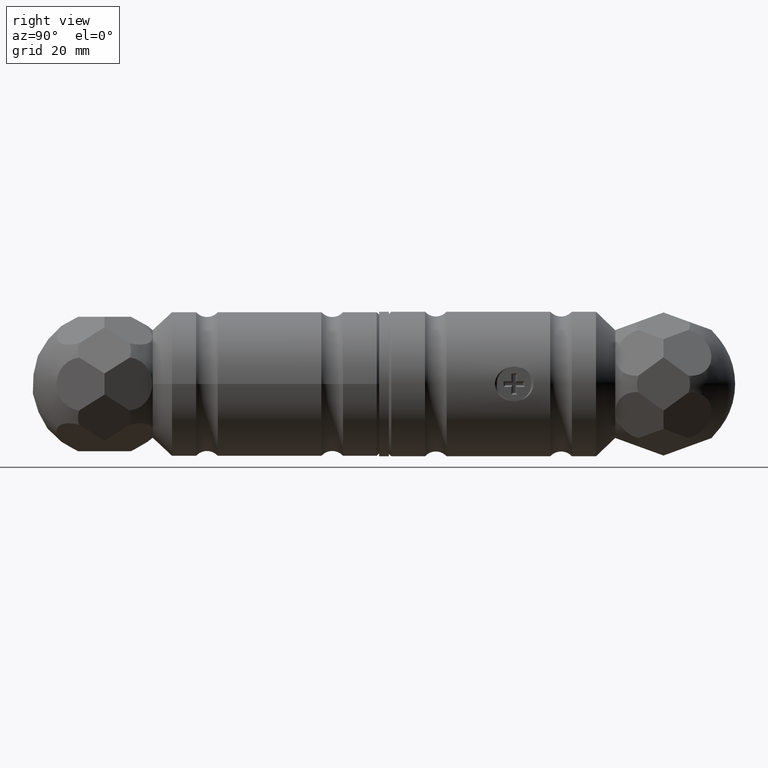
[diagram: clean part render]
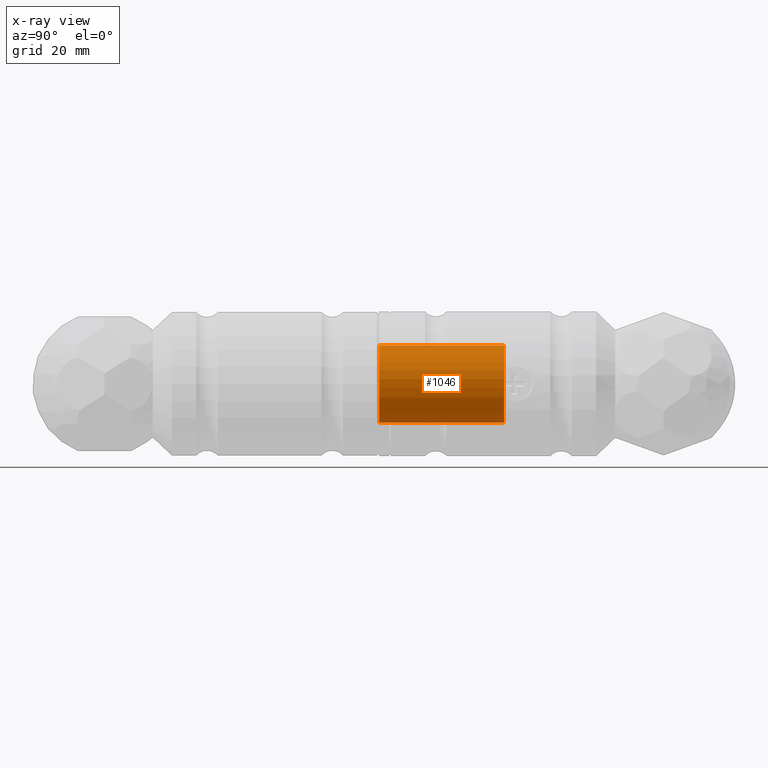
[diagram: x-ray — body ghosted, one internal face saturated and labeled with its STEP entity id]
A machine part, right view, then the same camera in x-ray: the body is ghosted and one INTERNAL B-rep face — a face not visible from any outside direction — is saturated and labeled: STEP entity #1046.
In plain terms, the highlighted cylindrical surface (bore or boss wall) has radius 8 mm, axis along (-0, -1, 0).
Its self-contained STEP definition (entity closure, byte-faithful):
#327 = CARTESIAN_POINT ( 'NONE',  ( -1.197398590121303649E-45, -25.89999999999999858, -2.888894916580853780E-31 ) ) ;
#1021 = CARTESIAN_POINT ( 'NONE',  ( -3.421138828918010427E-46, -42.00000000000000000, 9.629649721936179265E-32 ) ) ;
#1046 = ADVANCED_FACE ( 'NONE', ( #1513, #8788 ), #9881, .T. ) ;
#1069 = AXIS2_PLACEMENT_3D ( 'NONE', #6590, #11126, #4144 ) ;
#1489 = DIRECTION ( 'NONE',  ( 1.231609978410483754E-46, -1.000000000000000000, 0.000000000000000000 ) ) ;
#1513 = FACE_OUTER_BOUND ( 'NONE', #9290, .T. ) ;
#2189 = ORIENTED_EDGE ( 'NONE', *, *, #4283, .F. ) ;
#3016 = VERTEX_POINT ( 'NONE', #11690 ) ;
#3378 = EDGE_CURVE ( 'NONE', #9564, #9564, #3529, .T. ) ;
#3529 = CIRCLE ( 'NONE', #1069, 8.000000000000000000 ) ;
#3812 = DIRECTION ( 'NONE',  ( 0.000000000000000000, 0.000000000000000000, -1.000000000000000000 ) ) ;
#4144 = DIRECTION ( 'NONE',  ( 0.000000000000000000, 0.000000000000000000, -1.000000000000000000 ) ) ;
#4226 = CIRCLE ( 'NONE', #14305, 8.000000000000000000 ) ;
#4283 = EDGE_CURVE ( 'NONE', #3016, #3016, #4226, .T. ) ;
#6590 = CARTESIAN_POINT ( 'NONE',  ( 0.000000000000000000, 0.000000000000000000, 0.000000000000000000 ) ) ;
#8369 = AXIS2_PLACEMENT_3D ( 'NONE', #1021, #11301, #10319 ) ;
#8788 = FACE_OUTER_BOUND ( 'NONE', #14811, .T. ) ;
#9071 = ORIENTED_EDGE ( 'NONE', *, *, #3378, .T. ) ;
#9290 = EDGE_LOOP ( 'NONE', ( #9071 ) ) ;
#9564 = VERTEX_POINT ( 'NONE', #10524 ) ;
#9881 = CYLINDRICAL_SURFACE ( 'NONE', #8369, 8.000000000000000000 ) ;
#10319 = DIRECTION ( 'NONE',  ( 0.000000000000000000, 0.000000000000000000, 1.000000000000000000 ) ) ;
#10524 = CARTESIAN_POINT ( 'NONE',  ( 0.000000000000000000, 0.000000000000000000, -8.000000000000000000 ) ) ;
#11126 = DIRECTION ( 'NONE',  ( 1.231609978410483754E-46, -1.000000000000000000, 0.000000000000000000 ) ) ;
#11301 = DIRECTION ( 'NONE',  ( -2.463219956820967896E-46, 1.000000000000000000, 0.000000000000000000 ) ) ;
#11690 = CARTESIAN_POINT ( 'NONE',  ( -1.197398590121303649E-45, -25.89999999999999858, -8.000000000000000000 ) ) ;
#14305 = AXIS2_PLACEMENT_3D ( 'NONE', #327, #1489, #3812 ) ;
#14811 = EDGE_LOOP ( 'NONE', ( #2189 ) ) ;